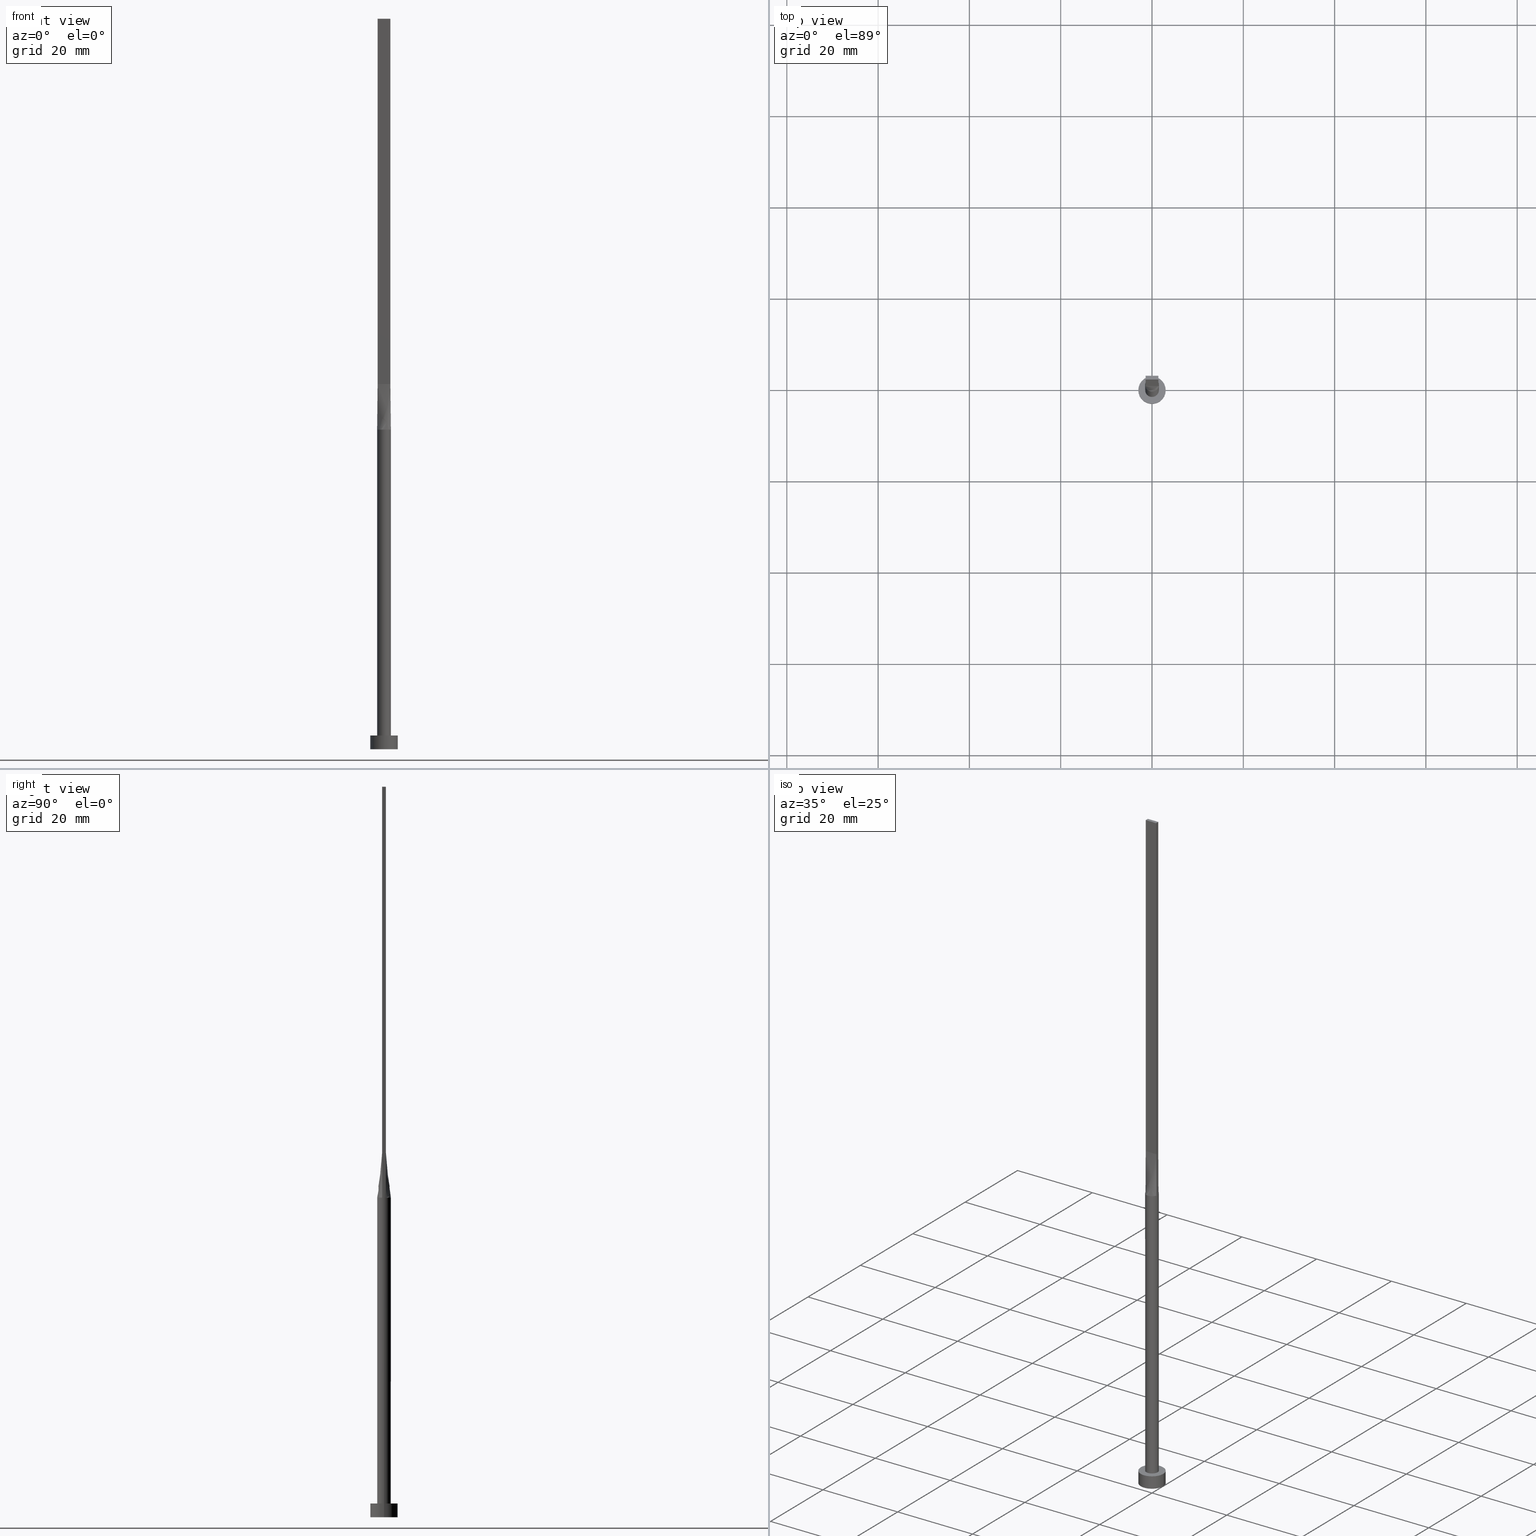
[diagram: canonical four-view strip — front | top / right | iso, engineering-drawing reading convention]
A machine part, canonical four-view strip (front | top / right | iso — engineering-drawing reading convention). The complete STEP part file that produces these views, byte-faithful:
ISO-10303-21;
HEADER;
FILE_DESCRIPTION (( 'STEP AP203' ),
    '1' );
FILE_NAME ('9461.STEP',
    '2026-02-12T09:08:30',
    ( '' ),
    ( '' ),
    'SwSTEP 2.0',
    'SolidWorks 2019',
    '' );
FILE_SCHEMA (( 'CONFIG_CONTROL_DESIGN' ));
ENDSEC;

DATA;
#1 = CARTESIAN_POINT ( 'NONE',  ( 1.442285921461234910, -0.4120816918460670220, 70.00000000000000000 ) ) ;
#2 = VERTEX_POINT ( 'NONE', #534 ) ;
#3 = CARTESIAN_POINT ( 'NONE',  ( -0.4666666666666673957, -0.3999999999999996336, 79.99999999999998579 ) ) ;
#4 = CYLINDRICAL_SURFACE ( 'NONE', #429, 3.000000000000000444 ) ;
#5 = EDGE_LOOP ( 'NONE', ( #409, #364, #118, #478 ) ) ;
#6 = CIRCLE ( 'NONE', #144, 3.000000000000000444 ) ;
#7 = AXIS2_PLACEMENT_3D ( 'NONE', #141, #191, #54 ) ;
#8 = CARTESIAN_POINT ( 'NONE',  ( -1.212111761082483863, -0.8950936653899566053, 70.00000000000001421 ) ) ;
#9 = DIRECTION ( 'NONE',  ( 0.000000000000000000, 0.000000000000000000, 1.000000000000000000 ) ) ;
#10 = EDGE_CURVE ( 'NONE', #226, #176, #210, .T. ) ;
#11 = DIRECTION ( 'NONE',  ( 0.000000000000000000, 0.000000000000000000, 1.000000000000000000 ) ) ;
#12 = EDGE_LOOP ( 'NONE', ( #406, #323, #430, #480 ) ) ;
#13 = FACE_OUTER_BOUND ( 'NONE', #321, .T. ) ;
#14 = VECTOR ( 'NONE', #553, 1000.000000000000000 ) ;
#15 = DIRECTION ( 'NONE',  ( 0.000000000000000000, 0.000000000000000000, 1.000000000000000000 ) ) ;
#16 = VECTOR ( 'NONE', #28, 1000.000000000000000 ) ;
#17 = CARTESIAN_POINT ( 'NONE',  ( -1.480021770517838897, -0.2800062201479532331, 70.00000000000000000 ) ) ;
#18 = ORIENTED_EDGE ( 'NONE', *, *, #419, .F. ) ;
#19 = CC_DESIGN_PERSON_AND_ORGANIZATION_ASSIGNMENT ( #299, #84, ( #27 ) ) ;
#20 = CARTESIAN_POINT ( 'NONE',  ( -1.399999999999999689, 0.4000000000000002442, 80.00000000000000000 ) ) ;
#21 = CARTESIAN_POINT ( 'NONE',  ( -1.442368678646663405, -0.4121057215347019853, 70.00000000000000000 ) ) ;
#22 =( NAMED_UNIT ( * ) PLANE_ANGLE_UNIT ( ) SI_UNIT ( $, .RADIAN. ) );
#23 = DIRECTION ( 'NONE',  ( 1.000000000000000000, 0.000000000000000000, 0.000000000000000000 ) ) ;
#24 = PLANE ( 'NONE',  #120 ) ;
#25 = CIRCLE ( 'NONE', #169, 1.500000000000000222 ) ;
#26 = CARTESIAN_POINT ( 'NONE',  ( 1.409267053536706671, 0.5276477295819161917, 70.00000000000000000 ) ) ;
#27 = SECURITY_CLASSIFICATION ( '', '', #111 ) ;
#28 = DIRECTION ( 'NONE',  ( -0.000000000000000000, -0.000000000000000000, -1.000000000000000000 ) ) ;
#29 = EDGE_CURVE ( 'NONE', #304, #226, #530, .T. ) ;
#30 = CARTESIAN_POINT ( 'NONE',  ( 0.000000000000000000, 0.000000000000000000, 3.000000000000000000 ) ) ;
#31 = PLANE ( 'NONE',  #307 ) ;
#32 = PERSON_AND_ORGANIZATION_ROLE ( 'creator' ) ;
#33 = EDGE_LOOP ( 'NONE', ( #126, #107, #55, #258, #401, #538 ) ) ;
#34 = CARTESIAN_POINT ( 'NONE',  ( -0.8665786268839184014, 1.235433898681765896, 70.00000000000000000 ) ) ;
#35 = COORDINATED_UNIVERSAL_TIME_OFFSET ( 1, 0, .AHEAD. ) ;
#36 = DIRECTION ( 'NONE',  ( -1.000000000000000000, -0.000000000000000000, -0.000000000000000000 ) ) ;
#37 = DIRECTION ( 'NONE',  ( 1.000000000000000000, -5.808225924029488744E-17, 0.000000000000000000 ) ) ;
#38 = EDGE_CURVE ( 'NONE', #176, #182, #361, .T. ) ;
#39 = CARTESIAN_POINT ( 'NONE',  ( -1.442285921461234688, 0.4120816918460670775, 70.00000000000000000 ) ) ;
#40 = FACE_OUTER_BOUND ( 'NONE', #5, .T. ) ;
#41 = EDGE_LOOP ( 'NONE', ( #345, #325 ) ) ;
#42 = CARTESIAN_POINT ( 'NONE',  ( 1.114527776139990101, 1.017390422009413431, 69.99999999999998579 ) ) ;
#43 = CARTESIAN_POINT ( 'NONE',  ( 0.000000000000000000, 0.000000000000000000, 70.00000000000000000 ) ) ;
#44 = CARTESIAN_POINT ( 'NONE',  ( -0.5833333333333339255, -0.3999999999999996336, 79.99999999999998579 ) ) ;
#45 = EDGE_CURVE ( 'NONE', #182, #467, #205, .T. ) ;
#46 = PLANE ( 'NONE',  #349 ) ;
#47 = CARTESIAN_POINT ( 'NONE',  ( 1.399999999999999911, -0.3999999999999998002, 80.00000000000000000 ) ) ;
#48 = EDGE_CURVE ( 'NONE', #238, #102, #160, .T. ) ;
#49 = EDGE_CURVE ( 'NONE', #353, #214, #557, .T. ) ;
#50 = VECTOR ( 'NONE', #402, 1000.000000000000000 ) ;
#51 = AXIS2_PLACEMENT_3D ( 'NONE', #146, #563, #383 ) ;
#52 = DIRECTION ( 'NONE',  ( -1.000000000000000000, 0.000000000000000000, 0.000000000000000000 ) ) ;
#53 = ORIENTED_EDGE ( 'NONE', *, *, #459, .F. ) ;
#54 = DIRECTION ( 'NONE',  ( -1.000000000000000000, 0.000000000000000000, 0.000000000000000000 ) ) ;
#55 = ORIENTED_EDGE ( 'NONE', *, *, #452, .F. ) ;
#56 = DIRECTION ( 'NONE',  ( 1.000000000000000000, 5.329070518200751394E-15, 0.000000000000000000 ) ) ;
#57 = VECTOR ( 'NONE', #36, 1000.000000000000000 ) ;
#58 = AXIS2_PLACEMENT_3D ( 'NONE', #461, #11, #184 ) ;
#59 = CARTESIAN_POINT ( 'NONE',  ( -1.399999999999999689, -0.1333333333333328041, 79.99999999999998579 ) ) ;
#60 = CYLINDRICAL_SURFACE ( 'NONE', #7, 3.000000000000000444 ) ;
#61 = PERSON_AND_ORGANIZATION ( #301, #371 ) ;
#62 = CARTESIAN_POINT ( 'NONE',  ( -1.399999999999999689, 0.4000000000000002442, 160.0000000000000000 ) ) ;
#63 = LINE ( 'NONE', #524, #221 ) ;
#64 = PLANE ( 'NONE',  #497 ) ;
#65 = EDGE_CURVE ( 'NONE', #226, #183, #542, .T. ) ;
#66 = DIRECTION ( 'NONE',  ( -0.000000000000000000, -0.000000000000000000, -1.000000000000000000 ) ) ;
#67 = DIRECTION ( 'NONE',  ( -0.004228551254826054019, -0.001208157501378828496, -0.9999903298081123104 ) ) ;
#68 = LOCAL_TIME ( 10, 8, 30.00000000000000000, #581 ) ;
#69 = CALENDAR_DATE ( 2026, 12, 2 ) ;
#70 = CARTESIAN_POINT ( 'NONE',  ( -0.2333333333333332815, 0.4000000000000001887, 79.99999999999998579 ) ) ;
#71 = APPLICATION_PROTOCOL_DEFINITION ( 'international standard', 'config_control_design', 1994, #158 ) ;
#72 = CARTESIAN_POINT ( 'NONE',  ( 0.8166666666666662078, 0.4000000000000001887, 79.99999999999998579 ) ) ;
#73 = ADVANCED_FACE ( 'NONE', ( #322 ), #4, .T. ) ;
#74 = DIRECTION ( 'NONE',  ( 0.000000000000000000, 0.000000000000000000, 1.000000000000000000 ) ) ;
#75 = VERTEX_POINT ( 'NONE', #165 ) ;
#76 = CARTESIAN_POINT ( 'NONE',  ( 0.1885753531885901724, 1.500000000000000666, 70.00000000000001421 ) ) ;
#77 = VECTOR ( 'NONE', #368, 1000.000000000000000 ) ;
#78 = CARTESIAN_POINT ( 'NONE',  ( 0.1166666666666653640, -0.3999999999999996336, 79.99999999999998579 ) ) ;
#79 = CARTESIAN_POINT ( 'NONE',  ( 0.1885753531885901724, 1.500000000000000666, 70.00000000000001421 ) ) ;
#80 = ORIENTED_EDGE ( 'NONE', *, *, #124, .F. ) ;
#81 = CC_DESIGN_DATE_AND_TIME_ASSIGNMENT ( #199, #562, ( #545 ) ) ;
#82 = CARTESIAN_POINT ( 'NONE',  ( -1.409267053536706893, -0.5276477295819155255, 70.00000000000000000 ) ) ;
#83 = VECTOR ( 'NONE', #390, 1000.000000000000000 ) ;
#84 = PERSON_AND_ORGANIZATION_ROLE ( 'classification_officer' ) ;
#85 = CARTESIAN_POINT ( 'NONE',  ( 0.1885753531885892564, -1.499999999999999778, 70.00000000000001421 ) ) ;
#86 = CARTESIAN_POINT ( 'NONE',  ( 0.8166666666666655416, -0.3999999999999997446, 79.99999999999998579 ) ) ;
#87 = EDGE_CURVE ( 'NONE', #341, #238, #520, .T. ) ;
#88 = FACE_BOUND ( 'NONE', #291, .T. ) ;
#89 = VERTEX_POINT ( 'NONE', #453 ) ;
#90 = CYLINDRICAL_SURFACE ( 'NONE', #308, 1.500000000000000222 ) ;
#91 = ORIENTED_EDGE ( 'NONE', *, *, #131, .T. ) ;
#92 = CARTESIAN_POINT ( 'NONE',  ( 1.399999999999999689, 0.4000000000000002442, 80.00000000000000000 ) ) ;
#93 = ORIENTED_EDGE ( 'NONE', *, *, #217, .F. ) ;
#94 = DIRECTION ( 'NONE',  ( 1.000000000000000000, 0.000000000000000000, 0.000000000000000000 ) ) ;
#95 = CARTESIAN_POINT ( 'NONE',  ( 3.000000000000000444, 3.673940397442060361E-16, 0.000000000000000000 ) ) ;
#96 = CARTESIAN_POINT ( 'NONE',  ( 0.000000000000000000, 0.000000000000000000, 3.000000000000000000 ) ) ;
#97 = DESIGN_CONTEXT ( 'detailed design', #158, 'design' ) ;
#98 = CARTESIAN_POINT ( 'NONE',  ( 0.000000000000000000, 0.000000000000000000, 70.00000000000000000 ) ) ;
#99 = PERSON_AND_ORGANIZATION ( #301, #371 ) ;
#100 = CARTESIAN_POINT ( 'NONE',  ( 1.399999999999999689, 0.2666666666666666630, 79.99999999999998579 ) ) ;
#101 = EDGE_CURVE ( 'NONE', #296, #75, #271, .T. ) ;
#102 = VERTEX_POINT ( 'NONE', #140 ) ;
#103 = CARTESIAN_POINT ( 'NONE',  ( -1.399999999999999911, -0.3999999999999996336, 80.00000000000000000 ) ) ;
#104 = DIRECTION ( 'NONE',  ( 0.000000000000000000, -0.000000000000000000, -1.000000000000000000 ) ) ;
#105 = CARTESIAN_POINT ( 'NONE',  ( 0.9333333333333329040, 0.4000000000000001332, 79.99999999999998579 ) ) ;
#106 = DIRECTION ( 'NONE',  ( -1.000000000000000000, -2.710505431213761085E-16, 0.000000000000000000 ) ) ;
#107 = ORIENTED_EDGE ( 'NONE', *, *, #374, .F. ) ;
#108 = CARTESIAN_POINT ( 'NONE',  ( 1.480021770517838897, 0.2800062201479540103, 70.00000000000000000 ) ) ;
#109 = CARTESIAN_POINT ( 'NONE',  ( 0.2333333333333335313, 0.4000000000000001887, 79.99999999999998579 ) ) ;
#110 = VECTOR ( 'NONE', #139, 1000.000000000000000 ) ;
#111 = SECURITY_CLASSIFICATION_LEVEL ( 'unclassified' ) ;
#112 = B_SPLINE_CURVE_WITH_KNOTS ( 'NONE', 3,
 ( #167, #533, #493, #537, #42, #456, #312, #363, #79, #127, #410, #579, #316, #494, #266, #377, #336, #225 ),
 .UNSPECIFIED., .F., .F.,
 ( 4, 2, 2, 2, 2, 2, 2, 2, 4 ),
 ( 0.000000000000000000, 0.1250000000000000833, 0.2500000000000001665, 0.3750000000000001110, 0.5000000000000001110, 0.6250000000000002220, 0.7500000000000001110, 0.8750000000000001110, 1.000000000000000000 ),
 .UNSPECIFIED. ) ;
#113 = CC_DESIGN_PERSON_AND_ORGANIZATION_ASSIGNMENT ( #339, #244, ( #545 ) ) ;
#114 = CARTESIAN_POINT ( 'NONE',  ( 1.283333333333332993, 0.4000000000000001887, 79.99999999999998579 ) ) ;
#115 = CARTESIAN_POINT ( 'NONE',  ( -1.500000000000000222, 0.000000000000000000, 70.00000000000000000 ) ) ;
#116 = ORIENTED_EDGE ( 'NONE', *, *, #552, .T. ) ;
#117 = CARTESIAN_POINT ( 'NONE',  ( 1.166666666666666075, 0.4000000000000001332, 79.99999999999998579 ) ) ;
#118 = ORIENTED_EDGE ( 'NONE', *, *, #211, .T. ) ;
#119 = CARTESIAN_POINT ( 'NONE',  ( -1.166666666666666741, -0.3999999999999996336, 79.99999999999998579 ) ) ;
#120 = AXIS2_PLACEMENT_3D ( 'NONE', #62, #441, #235 ) ;
#121 = CARTESIAN_POINT ( 'NONE',  ( 1.399999999999999911, -0.3999999999999998002, 160.0000000000000000 ) ) ;
#122 = CARTESIAN_POINT ( 'NONE',  ( -1.399999999999999911, -0.3999999999999996336, 160.0000000000000000 ) ) ;
#123 = CARTESIAN_POINT ( 'NONE',  ( -1.399999999999999689, 0.4000000000000002442, 80.00000000000000000 ) ) ;
#124 = EDGE_CURVE ( 'NONE', #536, #176, #334, .T. ) ;
#125 = ORIENTED_EDGE ( 'NONE', *, *, #45, .F. ) ;
#126 = ORIENTED_EDGE ( 'NONE', *, *, #101, .F. ) ;
#127 = CARTESIAN_POINT ( 'NONE',  ( -0.1885753531885899226, 1.500000000000000888, 70.00000000000001421 ) ) ;
#128 = ORIENTED_EDGE ( 'NONE', *, *, #177, .T. ) ;
#129 = FACE_OUTER_BOUND ( 'NONE', #12, .T. ) ;
#130 = APPROVAL_PERSON_ORGANIZATION ( #265, #445, #535 ) ;
#131 = EDGE_CURVE ( 'NONE', #75, #102, #25, .T. ) ;
#132 = CARTESIAN_POINT ( 'NONE',  ( -0.8166666666666668739, -0.3999999999999996336, 79.99999999999998579 ) ) ;
#133 = CARTESIAN_POINT ( 'NONE',  ( 0.000000000000000000, 0.000000000000000000, 70.00000000000000000 ) ) ;
#134 = ORIENTED_EDGE ( 'NONE', *, *, #131, .F. ) ;
#135 = ORIENTED_EDGE ( 'NONE', *, *, #419, .T. ) ;
#136 = CARTESIAN_POINT ( 'NONE',  ( 1.421142960730617411, -0.4060408459230334111, 75.00000000000001421 ) ) ;
#137 = ORIENTED_EDGE ( 'NONE', *, *, #437, .F. ) ;
#138 = PLANE ( 'NONE',  #420 ) ;
#139 = DIRECTION ( 'NONE',  ( 0.004228551254826032335, -0.001208157501378839338, 0.9999903298081123104 ) ) ;
#140 = CARTESIAN_POINT ( 'NONE',  ( -1.500000000000000222, 0.000000000000000000, 3.000000000000000000 ) ) ;
#141 = CARTESIAN_POINT ( 'NONE',  ( 0.000000000000000000, 0.000000000000000000, 3.000000000000000000 ) ) ;
#142 = DIRECTION ( 'NONE',  ( 0.000000000000000000, 0.000000000000000000, 1.000000000000000000 ) ) ;
#143 = DATE_AND_TIME ( #159, #180 ) ;
#144 = AXIS2_PLACEMENT_3D ( 'NONE', #484, #564, #208 ) ;
#145 = ADVANCED_FACE ( 'NONE', ( #431 ), #138, .F. ) ;
#146 = CARTESIAN_POINT ( 'NONE',  ( 0.000000000000000000, 0.000000000000000000, 70.00000000000000000 ) ) ;
#147 = EDGE_CURVE ( 'NONE', #102, #75, #496, .T. ) ;
#148 = FACE_OUTER_BOUND ( 'NONE', #315, .T. ) ;
#149 = CARTESIAN_POINT ( 'NONE',  ( 1.399999999999999689, 0.4000000000000002442, 160.0000000000000000 ) ) ;
#150 = CARTESIAN_POINT ( 'NONE',  ( -1.399999999999999911, -0.3999999999999996336, 160.0000000000000000 ) ) ;
#151 = APPROVAL_STATUS ( 'not_yet_approved' ) ;
#152 = ORIENTED_EDGE ( 'NONE', *, *, #29, .F. ) ;
#153 = CARTESIAN_POINT ( 'NONE',  ( 0.000000000000000000, 0.000000000000000000, 70.00000000000000000 ) ) ;
#154 = CARTESIAN_POINT ( 'NONE',  ( 0.000000000000000000, 0.000000000000000000, 70.00000000000000000 ) ) ;
#155 = LINE ( 'NONE', #483, #83 ) ;
#156 = CLOSED_SHELL ( 'NONE', ( #471, #73, #306, #411, #193, #354, #251, #491, #397, #231, #145, #504, #242, #523, #252 ) ) ;
#157 = CARTESIAN_POINT ( 'NONE',  ( -1.212111761082482975, 0.8950936653899578266, 70.00000000000001421 ) ) ;
#158 = APPLICATION_CONTEXT ( 'configuration controlled 3d designs of mechanical parts and assemblies' ) ;
#159 = CALENDAR_DATE ( 2026, 12, 2 ) ;
#160 = LINE ( 'NONE', #115, #369 ) ;
#161 = CARTESIAN_POINT ( 'NONE',  ( -0.1166666666666663771, 0.4000000000000001887, 79.99999999999998579 ) ) ;
#162 = CARTESIAN_POINT ( 'NONE',  ( 0.000000000000000000, 0.000000000000000000, 0.000000000000000000 ) ) ;
#163 = CARTESIAN_POINT ( 'NONE',  ( -1.421142960730617633, -0.4060408459230329670, 75.00000000000001421 ) ) ;
#164 = DIRECTION ( 'NONE',  ( -0.000000000000000000, -0.000000000000000000, -1.000000000000000000 ) ) ;
#165 = CARTESIAN_POINT ( 'NONE',  ( 1.500000000000000222, 1.836970198721030181E-16, 3.000000000000000000 ) ) ;
#166 = ORIENTED_EDGE ( 'NONE', *, *, #295, .F. ) ;
#167 = CARTESIAN_POINT ( 'NONE',  ( 1.442362338805188937, 0.4121038472597355895, 70.00000000000000000 ) ) ;
#168 = PRODUCT_RELATED_PRODUCT_CATEGORY ( 'detail', '', ( #507 ) ) ;
#169 = AXIS2_PLACEMENT_3D ( 'NONE', #427, #15, #94 ) ;
#170 =( GEOMETRIC_REPRESENTATION_CONTEXT ( 3 ) GLOBAL_UNCERTAINTY_ASSIGNED_CONTEXT ( ( #259 ) ) GLOBAL_UNIT_ASSIGNED_CONTEXT ( ( #525, #22, #386 ) ) REPRESENTATION_CONTEXT ( 'NONE', 'WORKASPACE' ) );
#171 = APPROVAL_STATUS ( 'not_yet_approved' ) ;
#172 = ORIENTED_EDGE ( 'NONE', *, *, #187, .T. ) ;
#173 = CARTESIAN_POINT ( 'NONE',  ( 1.212111761082483197, -0.8950936653899579376, 70.00000000000002842 ) ) ;
#174 = ORIENTED_EDGE ( 'NONE', *, *, #275, .T. ) ;
#175 = DIRECTION ( 'NONE',  ( 1.000000000000000000, 0.000000000000000000, -0.000000000000000000 ) ) ;
#176 = VERTEX_POINT ( 'NONE', #289 ) ;
#177 = EDGE_CURVE ( 'NONE', #238, #426, #398, .T. ) ;
#178 = CARTESIAN_POINT ( 'NONE',  ( -0.3767059690781856540, -1.463302066271690904, 70.00000000000000000 ) ) ;
#179 = ORIENTED_EDGE ( 'NONE', *, *, #49, .F. ) ;
#180 = LOCAL_TIME ( 10, 8, 30.00000000000000000, #35 ) ;
#181 = CARTESIAN_POINT ( 'NONE',  ( -1.283333333333333437, -0.3999999999999996336, 79.99999999999998579 ) ) ;
#182 = VERTEX_POINT ( 'NONE', #393 ) ;
#183 = VERTEX_POINT ( 'NONE', #404 ) ;
#184 = DIRECTION ( 'NONE',  ( 1.000000000000000000, 0.000000000000000000, 0.000000000000000000 ) ) ;
#185 = DIRECTION ( 'NONE',  ( -0.000000000000000000, -0.000000000000000000, -1.000000000000000000 ) ) ;
#186 = ORIENTED_EDGE ( 'NONE', *, *, #317, .T. ) ;
#187 = EDGE_CURVE ( 'NONE', #214, #353, #6, .T. ) ;
#188 = VECTOR ( 'NONE', #570, 1000.000000000000000 ) ;
#189 = AXIS2_PLACEMENT_3D ( 'NONE', #133, #282, #56 ) ;
#190 = CIRCLE ( 'NONE', #51, 1.500000000000000222 ) ;
#191 = DIRECTION ( 'NONE',  ( -0.000000000000000000, -0.000000000000000000, -1.000000000000000000 ) ) ;
#192 = FACE_OUTER_BOUND ( 'NONE', #41, .T. ) ;
#193 = ADVANCED_FACE ( 'NONE', ( #474 ), #31, .F. ) ;
#194 = LINE ( 'NONE', #509, #578 ) ;
#195 = VECTOR ( 'NONE', #438, 1000.000000000000000 ) ;
#196 = ORIENTED_EDGE ( 'NONE', *, *, #452, .T. ) ;
#197 = LINE ( 'NONE', #297, #16 ) ;
#198 = CARTESIAN_POINT ( 'NONE',  ( 1.359280768448766663, 0.6502025712814714087, 69.99999999999998579 ) ) ;
#199 = DATE_AND_TIME ( #352, #385 ) ;
#200 = CARTESIAN_POINT ( 'NONE',  ( 1.442285921461234910, 0.4120816918460673550, 70.00000000000000000 ) ) ;
#201 = CARTESIAN_POINT ( 'NONE',  ( 0.8665786268839186235, 1.235433898681765008, 69.99999999999998579 ) ) ;
#202 = CARTESIAN_POINT ( 'NONE',  ( 0.000000000000000000, 0.000000000000000000, 0.000000000000000000 ) ) ;
#203 = CARTESIAN_POINT ( 'NONE',  ( 0.4666666666666665630, 0.4000000000000001887, 79.99999999999998579 ) ) ;
#204 = EDGE_CURVE ( 'NONE', #467, #426, #240, .T. ) ;
#205 = LINE ( 'NONE', #400, #188 ) ;
#206 = ORIENTED_EDGE ( 'NONE', *, *, #204, .T. ) ;
#207 = VECTOR ( 'NONE', #302, 1000.000000000000000 ) ;
#208 = DIRECTION ( 'NONE',  ( 1.000000000000000000, 0.000000000000000000, 0.000000000000000000 ) ) ;
#209 = CARTESIAN_POINT ( 'NONE',  ( 0.5833333333333330373, 0.4000000000000001887, 79.99999999999998579 ) ) ;
#210 = LINE ( 'NONE', #575, #284 ) ;
#211 = EDGE_CURVE ( 'NONE', #412, #304, #63, .T. ) ;
#212 = EDGE_LOOP ( 'NONE', ( #174, #510, #264, #80 ) ) ;
#213 = FACE_OUTER_BOUND ( 'NONE', #449, .T. ) ;
#214 = VERTEX_POINT ( 'NONE', #293 ) ;
#215 = DIRECTION ( 'NONE',  ( 0.000000000000000000, 0.000000000000000000, 1.000000000000000000 ) ) ;
#216 = CARTESIAN_POINT ( 'NONE',  ( -1.500000000000000222, 8.735352324927310277E-17, 70.00000000000000000 ) ) ;
#217 = EDGE_CURVE ( 'NONE', #412, #467, #561, .T. ) ;
#218 = CARTESIAN_POINT ( 'NONE',  ( -1.442285921461235132, -0.4120816918460664113, 70.00000000000000000 ) ) ;
#219 = ORIENTED_EDGE ( 'NONE', *, *, #328, .F. ) ;
#220 = DIRECTION ( 'NONE',  ( 5.808225924029488744E-17, 1.000000000000000000, -0.000000000000000000 ) ) ;
#221 = VECTOR ( 'NONE', #37, 1000.000000000000000 ) ;
#222 = DIRECTION ( 'NONE',  ( -2.710505431213761085E-16, 1.000000000000000000, -0.000000000000000000 ) ) ;
#223 = CARTESIAN_POINT ( 'NONE',  ( 1.399999999999999689, 0.4000000000000002442, 160.0000000000000000 ) ) ;
#224 = EDGE_CURVE ( 'NONE', #314, #2, #384, .T. ) ;
#225 = CARTESIAN_POINT ( 'NONE',  ( -1.442387148345315895, 0.4121110244020492197, 70.00000000000000000 ) ) ;
#226 = VERTEX_POINT ( 'NONE', #356 ) ;
#227 = CARTESIAN_POINT ( 'NONE',  ( -1.399999999999999689, 0.1333333333333337756, 79.99999999999998579 ) ) ;
#228 = AXIS2_PLACEMENT_3D ( 'NONE', #162, #9, #269 ) ;
#229 = APPROVAL_PERSON_ORGANIZATION ( #61, #565, #344 ) ;
#230 = CARTESIAN_POINT ( 'NONE',  ( -1.399999999999999911, -0.2666666666666661634, 79.99999999999998579 ) ) ;
#231 = ADVANCED_FACE ( 'NONE', ( #236 ), #233, .T. ) ;
#232 = CARTESIAN_POINT ( 'NONE',  ( -1.399999999999999689, 0.2666666666666669960, 79.99999999999998579 ) ) ;
#233 = B_SPLINE_SURFACE_WITH_KNOTS ( 'NONE', 3, 1, ( 
 ( #476, #245 ),
 ( #26, #114 ),
 ( #198, #117 ),
 ( #389, #105 ),
 ( #442, #72 ),
 ( #201, #209 ),
 ( #347, #203 ),
 ( #519, #109 ),
 ( #76, #450 ),
 ( #298, #161 ),
 ( #482, #70 ),
 ( #243, #444 ),
 ( #34, #396 ),
 ( #355, #567 ),
 ( #157, #300 ),
 ( #447, #526 ),
 ( #305, #487 ),
 ( #39, #498 ) ),
 .UNSPECIFIED., .F., .F., .F.,
 ( 4, 2, 2, 2, 2, 2, 2, 2, 4 ),
 ( 2, 2 ),
 ( 0.000000000000000000, 0.1250000000000000833, 0.2500000000000001665, 0.3750000000000001110, 0.5000000000000001110, 0.6250000000000002220, 0.7500000000000001110, 0.8750000000000001110, 1.000000000000000000 ),
 ( 0.000000000000000000, 1.000000000000000000 ),
 .UNSPECIFIED. ) ;
#234 = PERSON_AND_ORGANIZATION_ROLE ( 'design_supplier' ) ;
#235 = DIRECTION ( 'NONE',  ( 2.710505431213761578E-16, 1.000000000000000000, 0.000000000000000000 ) ) ;
#236 = FACE_OUTER_BOUND ( 'NONE', #212, .T. ) ;
#237 = DIRECTION ( 'NONE',  ( 1.000000000000000000, 0.000000000000000000, 0.000000000000000000 ) ) ;
#238 = VERTEX_POINT ( 'NONE', #216 ) ;
#239 = DIRECTION ( 'NONE',  ( -1.000000000000000000, 0.000000000000000000, 0.000000000000000000 ) ) ;
#240 = LINE ( 'NONE', #163, #488 ) ;
#241 = DATE_AND_TIME ( #69, #399 ) ;
#242 = ADVANCED_FACE ( 'NONE', ( #129 ), #46, .F. ) ;
#243 = CARTESIAN_POINT ( 'NONE',  ( -0.7158926189626803049, 1.330660769095148410, 70.00000000000000000 ) ) ;
#244 = PERSON_AND_ORGANIZATION_ROLE ( 'creator' ) ;
#245 = CARTESIAN_POINT ( 'NONE',  ( 1.399999999999999689, 0.4000000000000002442, 80.00000000000000000 ) ) ;
#246 = DATE_AND_TIME ( #405, #68 ) ;
#247 = EDGE_LOOP ( 'NONE', ( #571, #464, #116, #172 ) ) ;
#248 = AXIS2_PLACEMENT_3D ( 'NONE', #154, #250, #574 ) ;
#249 = CIRCLE ( 'NONE', #58, 3.000000000000000444 ) ;
#250 = DIRECTION ( 'NONE',  ( 0.000000000000000000, 0.000000000000000000, 1.000000000000000000 ) ) ;
#251 = ADVANCED_FACE ( 'NONE', ( #213 ), #434, .T. ) ;
#252 = ADVANCED_FACE ( 'NONE', ( #40 ), #407, .T. ) ;
#253 = DATE_AND_TIME ( #415, #359 ) ;
#254 = CARTESIAN_POINT ( 'NONE',  ( 0.7158926189626801939, -1.330660769095147744, 69.99999999999998579 ) ) ;
#255 = DATE_TIME_ROLE ( 'classification_date' ) ;
#256 = DIRECTION ( 'NONE',  ( 1.000000000000000000, 0.000000000000000000, 0.000000000000000000 ) ) ;
#257 = CARTESIAN_POINT ( 'NONE',  ( -1.359280768448767551, -0.6502025712814705205, 69.99999999999998579 ) ) ;
#258 = ORIENTED_EDGE ( 'NONE', *, *, #177, .F. ) ;
#259 = UNCERTAINTY_MEASURE_WITH_UNIT (LENGTH_MEASURE( 1.000000000000000082E-05 ), #525, 'distance_accuracy_value', 'NONE');
#260 = DIRECTION ( 'NONE',  ( -1.000000000000000000, 0.000000000000000000, 0.000000000000000000 ) ) ;
#261 = AXIS2_PLACEMENT_3D ( 'NONE', #43, #311, #256 ) ;
#262 = CARTESIAN_POINT ( 'NONE',  ( -0.7158926189626813041, -1.330660769095146634, 69.99999999999998579 ) ) ;
#263 = AXIS2_PLACEMENT_3D ( 'NONE', #153, #66, #239 ) ;
#264 = ORIENTED_EDGE ( 'NONE', *, *, #38, .F. ) ;
#265 = PERSON_AND_ORGANIZATION ( #301, #371 ) ;
#266 = CARTESIAN_POINT ( 'NONE',  ( -1.212111761082482975, 0.8950936653899578266, 70.00000000000001421 ) ) ;
#267 = ORIENTED_EDGE ( 'NONE', *, *, #10, .T. ) ;
#268 = CARTESIAN_POINT ( 'NONE',  ( 1.166666666666666075, -0.3999999999999997446, 79.99999999999998579 ) ) ;
#269 = DIRECTION ( 'NONE',  ( 1.000000000000000000, 0.000000000000000000, 0.000000000000000000 ) ) ;
#270 = CARTESIAN_POINT ( 'NONE',  ( 0.000000000000000000, 0.000000000000000000, 3.000000000000000000 ) ) ;
#271 = LINE ( 'NONE', #380, #272 ) ;
#272 = VECTOR ( 'NONE', #549, 1000.000000000000000 ) ;
#273 = APPROVAL_PERSON_ORGANIZATION ( #394, #283, #569 ) ;
#274 = ORIENTED_EDGE ( 'NONE', *, *, #374, .T. ) ;
#275 = EDGE_CURVE ( 'NONE', #536, #341, #112, .T. ) ;
#276 = EDGE_LOOP ( 'NONE', ( #580, #53, #573, #267 ) ) ;
#277 = CARTESIAN_POINT ( 'NONE',  ( -1.442285921461234688, 0.4120816918460674105, 70.00000000000000000 ) ) ;
#278 = ORIENTED_EDGE ( 'NONE', *, *, #317, .F. ) ;
#279 = PRODUCT_DEFINITION_SHAPE ( 'NONE', 'NONE',  #545 ) ;
#280 = CARTESIAN_POINT ( 'NONE',  ( -1.399999999999999911, -0.3999999999999996336, 80.00000000000000000 ) ) ;
#281 = CARTESIAN_POINT ( 'NONE',  ( 1.421142960730617189, 0.4060408459230337996, 75.00000000000001421 ) ) ;
#282 = DIRECTION ( 'NONE',  ( 0.000000000000000000, 0.000000000000000000, 1.000000000000000000 ) ) ;
#283 = APPROVAL ( #151, 'NEUR�EN�' ) ;
#284 = VECTOR ( 'NONE', #164, 1000.000000000000000 ) ;
#285 = VECTOR ( 'NONE', #463, 1000.000000000000000 ) ;
#286 = DIRECTION ( 'NONE',  ( 0.000000000000000000, 0.000000000000000000, 1.000000000000000000 ) ) ;
#287 = PERSON_AND_ORGANIZATION_ROLE ( 'design_owner' ) ;
#288 = CARTESIAN_POINT ( 'NONE',  ( 1.399999999999999689, 0.4000000000000002442, 80.00000000000000000 ) ) ;
#289 = CARTESIAN_POINT ( 'NONE',  ( 1.399999999999999689, 0.4000000000000002442, 80.00000000000000000 ) ) ;
#290 = APPROVAL_DATE_TIME ( #143, #283 ) ;
#291 = EDGE_LOOP ( 'NONE', ( #543, #134 ) ) ;
#292 = FACE_OUTER_BOUND ( 'NONE', #508, .T. ) ;
#293 = CARTESIAN_POINT ( 'NONE',  ( -3.000000000000000444, 0.000000000000000000, 0.000000000000000000 ) ) ;
#294 = MECHANICAL_CONTEXT ( 'NONE', #499, 'mechanical' ) ;
#295 = EDGE_CURVE ( 'NONE', #467, #89, #381, .T. ) ;
#296 = VERTEX_POINT ( 'NONE', #425 ) ;
#297 = CARTESIAN_POINT ( 'NONE',  ( -1.399999999999999689, 0.4000000000000002442, 160.0000000000000000 ) ) ;
#298 = CARTESIAN_POINT ( 'NONE',  ( -0.1885753531885899226, 1.500000000000000888, 70.00000000000001421 ) ) ;
#299 = PERSON_AND_ORGANIZATION ( #301, #371 ) ;
#300 = CARTESIAN_POINT ( 'NONE',  ( -0.9333333333333331261, 0.4000000000000001887, 79.99999999999998579 ) ) ;
#301 = PERSON ( 'NEUR�EN�', 'NEUR�EN�', 'NEUR�EN�', ('NEUR�EN�'), ('NEUR�EN�'), ('NEUR�EN�') ) ;
#302 = DIRECTION ( 'NONE',  ( -0.000000000000000000, -0.000000000000000000, -1.000000000000000000 ) ) ;
#303 = VERTEX_POINT ( 'NONE', #326 ) ;
#304 = VERTEX_POINT ( 'NONE', #550 ) ;
#305 = CARTESIAN_POINT ( 'NONE',  ( -1.409267053536706671, 0.5276477295819163027, 70.00000000000001421 ) ) ;
#306 = ADVANCED_FACE ( 'NONE', ( #428 ), #60, .T. ) ;
#307 = AXIS2_PLACEMENT_3D ( 'NONE', #516, #351, #528 ) ;
#308 = AXIS2_PLACEMENT_3D ( 'NONE', #333, #185, #52 ) ;
#309 = CARTESIAN_POINT ( 'NONE',  ( -0.2333333333333344473, -0.3999999999999996336, 79.99999999999998579 ) ) ;
#310 = DIRECTION ( 'NONE',  ( -2.710505431213761085E-16, 1.000000000000000000, 0.000000000000000000 ) ) ;
#311 = DIRECTION ( 'NONE',  ( 0.000000000000000000, 0.000000000000000000, 1.000000000000000000 ) ) ;
#312 = CARTESIAN_POINT ( 'NONE',  ( 0.7158926189626808601, 1.330660769095147966, 69.99999999999998579 ) ) ;
#313 = SHAPE_DEFINITION_REPRESENTATION ( #279, #416 ) ;
#314 = VERTEX_POINT ( 'NONE', #541 ) ;
#315 = EDGE_LOOP ( 'NONE', ( #551, #506, #152, #378 ) ) ;
#316 = CARTESIAN_POINT ( 'NONE',  ( -0.8665786268839184014, 1.235433898681765896, 70.00000000000000000 ) ) ;
#317 = EDGE_CURVE ( 'NONE', #303, #89, #544, .T. ) ;
#318 = AXIS2_PLACEMENT_3D ( 'NONE', #30, #555, #23 ) ;
#319 = CARTESIAN_POINT ( 'NONE',  ( 1.359280768448766663, -0.6502025712814719638, 70.00000000000001421 ) ) ;
#320 = CIRCLE ( 'NONE', #477, 1.500000000000000222 ) ;
#321 = EDGE_LOOP ( 'NONE', ( #373, #128, #372, #125, #219 ) ) ;
#322 = FACE_OUTER_BOUND ( 'NONE', #502, .T. ) ;
#323 = ORIENTED_EDGE ( 'NONE', *, *, #512, .F. ) ;
#324 = CARTESIAN_POINT ( 'NONE',  ( 0.8665786268839185125, -1.235433898681766340, 70.00000000000002842 ) ) ;
#325 = ORIENTED_EDGE ( 'NONE', *, *, #437, .T. ) ;
#326 = CARTESIAN_POINT ( 'NONE',  ( 1.442393550978850802, -0.4121129214357137083, 70.00000000000000000 ) ) ;
#327 = ORIENTED_EDGE ( 'NONE', *, *, #124, .T. ) ;
#328 = EDGE_CURVE ( 'NONE', #341, #182, #330, .T. ) ;
#329 = ORIENTED_EDGE ( 'NONE', *, *, #87, .F. ) ;
#330 = LINE ( 'NONE', #501, #110 ) ;
#331 = CIRCLE ( 'NONE', #189, 1.500000000000000222 ) ;
#332 = EDGE_LOOP ( 'NONE', ( #18, #531, #91, #457, #329, #486 ) ) ;
#333 = CARTESIAN_POINT ( 'NONE',  ( 0.000000000000000000, 0.000000000000000000, 70.00000000000000000 ) ) ;
#334 = LINE ( 'NONE', #281, #14 ) ;
#335 = EDGE_CURVE ( 'NONE', #183, #412, #194, .T. ) ;
#336 = CARTESIAN_POINT ( 'NONE',  ( -1.409267053536706671, 0.5276477295819163027, 70.00000000000001421 ) ) ;
#337 = ORIENTED_EDGE ( 'NONE', *, *, #49, .T. ) ;
#338 = DIRECTION ( 'NONE',  ( 1.000000000000000000, 0.000000000000000000, -0.000000000000000000 ) ) ;
#339 = PERSON_AND_ORGANIZATION ( #301, #371 ) ;
#340 = FACE_OUTER_BOUND ( 'NONE', #332, .T. ) ;
#341 = VERTEX_POINT ( 'NONE', #503 ) ;
#342 = CARTESIAN_POINT ( 'NONE',  ( 1.480021770517838231, -0.2800062201479543988, 70.00000000000001421 ) ) ;
#343 = DIRECTION ( 'NONE',  ( 0.000000000000000000, 0.000000000000000000, 1.000000000000000000 ) ) ;
#344 = APPROVAL_ROLE ( '' ) ;
#345 = ORIENTED_EDGE ( 'NONE', *, *, #224, .T. ) ;
#346 = CARTESIAN_POINT ( 'NONE',  ( 1.500000000000000222, -0.1400549446402594711, 70.00000000000000000 ) ) ;
#347 = CARTESIAN_POINT ( 'NONE',  ( 0.7158926189626808601, 1.330660769095147966, 69.99999999999998579 ) ) ;
#348 = APPROVAL_STATUS ( 'not_yet_approved' ) ;
#349 = AXIS2_PLACEMENT_3D ( 'NONE', #122, #220, #539 ) ;
#350 = ORIENTED_EDGE ( 'NONE', *, *, #335, .F. ) ;
#351 = DIRECTION ( 'NONE',  ( 0.000000000000000000, 0.000000000000000000, 1.000000000000000000 ) ) ;
#352 = CALENDAR_DATE ( 2026, 12, 2 ) ;
#353 = VERTEX_POINT ( 'NONE', #95 ) ;
#354 = ADVANCED_FACE ( 'NONE', ( #468 ), #90, .T. ) ;
#355 = CARTESIAN_POINT ( 'NONE',  ( -1.114527776139989212, 1.017390422009414319, 70.00000000000001421 ) ) ;
#356 = CARTESIAN_POINT ( 'NONE',  ( 1.399999999999999689, 0.4000000000000002442, 160.0000000000000000 ) ) ;
#357 = MANIFOLD_SOLID_BREP ( 'P�idat vysunut�m5', #156 ) ;
#358 = ORIENTED_EDGE ( 'NONE', *, *, #552, .F. ) ;
#359 = LOCAL_TIME ( 10, 8, 30.00000000000000000, #495 ) ;
#360 = CARTESIAN_POINT ( 'NONE',  ( 1.283333333333332993, -0.3999999999999997446, 79.99999999999998579 ) ) ;
#361 = LINE ( 'NONE', #123, #57 ) ;
#362 = DIRECTION ( 'NONE',  ( -0.000000000000000000, -0.000000000000000000, -1.000000000000000000 ) ) ;
#363 = CARTESIAN_POINT ( 'NONE',  ( 0.3767059690781852654, 1.463302066271692015, 70.00000000000001421 ) ) ;
#364 = ORIENTED_EDGE ( 'NONE', *, *, #335, .T. ) ;
#365 = EDGE_CURVE ( 'NONE', #89, #176, #505, .T. ) ;
#366 = CARTESIAN_POINT ( 'NONE',  ( 0.3767059690781844328, -1.463302066271691571, 70.00000000000000000 ) ) ;
#367 = ORIENTED_EDGE ( 'NONE', *, *, #187, .F. ) ;
#368 = DIRECTION ( 'NONE',  ( -1.000000000000000000, 0.000000000000000000, 0.000000000000000000 ) ) ;
#369 = VECTOR ( 'NONE', #403, 1000.000000000000000 ) ;
#370 = CARTESIAN_POINT ( 'NONE',  ( -0.9333333333333335702, -0.3999999999999996336, 79.99999999999998579 ) ) ;
#371 = ORGANIZATION ( 'NEUR�EN�', 'NEUR�EN�', '' ) ;
#372 = ORIENTED_EDGE ( 'NONE', *, *, #204, .F. ) ;
#373 = ORIENTED_EDGE ( 'NONE', *, *, #87, .T. ) ;
#374 = EDGE_CURVE ( 'NONE', #303, #296, #331, .T. ) ;
#375 = CC_DESIGN_PERSON_AND_ORGANIZATION_ASSIGNMENT ( #99, #287, ( #507 ) ) ;
#376 = CARTESIAN_POINT ( 'NONE',  ( -0.8665786268839192896, -1.235433898681764786, 69.99999999999998579 ) ) ;
#377 = CARTESIAN_POINT ( 'NONE',  ( -1.359280768448767329, 0.6502025712814717417, 70.00000000000002842 ) ) ;
#378 = ORIENTED_EDGE ( 'NONE', *, *, #512, .T. ) ;
#379 = CARTESIAN_POINT ( 'NONE',  ( -1.500000000000000222, 0.1400549446402596099, 70.00000000000000000 ) ) ;
#380 = CARTESIAN_POINT ( 'NONE',  ( 1.500000000000000222, 1.836970198721030181E-16, 70.00000000000000000 ) ) ;
#381 = LINE ( 'NONE', #280, #285 ) ;
#382 = PLANE ( 'NONE',  #521 ) ;
#383 = DIRECTION ( 'NONE',  ( 1.000000000000000000, 0.000000000000000000, 0.000000000000000000 ) ) ;
#384 = CIRCLE ( 'NONE', #532, 3.000000000000000444 ) ;
#385 = LOCAL_TIME ( 10, 8, 30.00000000000000000, #446 ) ;
#386 =( NAMED_UNIT ( * ) SI_UNIT ( $, .STERADIAN. ) SOLID_ANGLE_UNIT ( ) );
#387 = CYLINDRICAL_SURFACE ( 'NONE', #263, 1.500000000000000222 ) ;
#388 = CC_DESIGN_PERSON_AND_ORGANIZATION_ASSIGNMENT ( #566, #32, ( #462 ) ) ;
#389 = CARTESIAN_POINT ( 'NONE',  ( 1.212111761082483197, 0.8950936653899574935, 70.00000000000001421 ) ) ;
#390 = DIRECTION ( 'NONE',  ( -0.000000000000000000, -0.000000000000000000, -1.000000000000000000 ) ) ;
#391 = EDGE_LOOP ( 'NONE', ( #367, #179 ) ) ;
#392 = CARTESIAN_POINT ( 'NONE',  ( 1.399999999999999911, -0.2666666666666665519, 79.99999999999998579 ) ) ;
#393 = CARTESIAN_POINT ( 'NONE',  ( -1.399999999999999689, 0.4000000000000002442, 80.00000000000000000 ) ) ;
#394 = PERSON_AND_ORGANIZATION ( #301, #371 ) ;
#395 = EDGE_LOOP ( 'NONE', ( #546, #93, #350, #414 ) ) ;
#396 = CARTESIAN_POINT ( 'NONE',  ( -0.5833333333333332593, 0.4000000000000001887, 79.99999999999998579 ) ) ;
#397 = ADVANCED_FACE ( 'NONE', ( #13 ), #424, .T. ) ;
#398 = CIRCLE ( 'NONE', #248, 1.500000000000000222 ) ;
#399 = LOCAL_TIME ( 10, 8, 30.00000000000000000, #517 ) ;
#400 = CARTESIAN_POINT ( 'NONE',  ( -1.399999999999999689, 0.4000000000000002442, 80.00000000000000000 ) ) ;
#401 = ORIENTED_EDGE ( 'NONE', *, *, #48, .T. ) ;
#402 = DIRECTION ( 'NONE',  ( -0.000000000000000000, -0.000000000000000000, -1.000000000000000000 ) ) ;
#403 = DIRECTION ( 'NONE',  ( -0.000000000000000000, -0.000000000000000000, -1.000000000000000000 ) ) ;
#404 = CARTESIAN_POINT ( 'NONE',  ( -1.399999999999999689, 0.4000000000000002442, 160.0000000000000000 ) ) ;
#405 = CALENDAR_DATE ( 2026, 12, 2 ) ;
#406 = ORIENTED_EDGE ( 'NONE', *, *, #295, .T. ) ;
#407 = PLANE ( 'NONE',  #489 ) ;
#408 = VECTOR ( 'NONE', #310, 1000.000000000000000 ) ;
#409 = ORIENTED_EDGE ( 'NONE', *, *, #65, .T. ) ;
#410 = CARTESIAN_POINT ( 'NONE',  ( -0.3767059690781846548, 1.463302066271692015, 70.00000000000000000 ) ) ;
#411 = ADVANCED_FACE ( 'NONE', ( #88, #192 ), #382, .T. ) ;
#412 = VERTEX_POINT ( 'NONE', #511 ) ;
#413 = CARTESIAN_POINT ( 'NONE',  ( 0.9333333333333324600, -0.3999999999999997446, 79.99999999999998579 ) ) ;
#414 = ORIENTED_EDGE ( 'NONE', *, *, #459, .T. ) ;
#415 = CALENDAR_DATE ( 2026, 12, 2 ) ;
#416 = ADVANCED_BREP_SHAPE_REPRESENTATION ( '9461', ( #357, #558 ), #170 ) ;
#417 = CARTESIAN_POINT ( 'NONE',  ( -1.399999999999999911, -0.3999999999999996336, 80.00000000000000000 ) ) ;
#418 = ORIENTED_EDGE ( 'NONE', *, *, #529, .T. ) ;
#419 = EDGE_CURVE ( 'NONE', #296, #536, #320, .T. ) ;
#420 = AXIS2_PLACEMENT_3D ( 'NONE', #149, #515, #104 ) ;
#421 = CARTESIAN_POINT ( 'NONE',  ( -1.114527776139990323, -1.017390422009413209, 70.00000000000001421 ) ) ;
#422 = CC_DESIGN_SECURITY_CLASSIFICATION ( #27, ( #462 ) ) ;
#423 = CARTESIAN_POINT ( 'NONE',  ( -1.399999999999999911, -0.3999999999999994671, 80.00000000000000000 ) ) ;
#424 = B_SPLINE_SURFACE_WITH_KNOTS ( 'NONE', 3, 1, ( 
 ( #277, #20 ),
 ( #554, #232 ),
 ( #379, #227 ),
 ( #435, #59 ),
 ( #17, #230 ),
 ( #432, #423 ) ),
 .UNSPECIFIED., .F., .F., .F.,
 ( 4, 2, 4 ),
 ( 2, 2 ),
 ( 0.000000000000000000, 0.5000000000000000000, 1.000000000000000000 ),
 ( 0.000000000000000000, 1.000000000000000000 ),
 .UNSPECIFIED. ) ;
#425 = CARTESIAN_POINT ( 'NONE',  ( 1.500000000000000000, -9.795443734464536283E-18, 70.00000000000000000 ) ) ;
#426 = VERTEX_POINT ( 'NONE', #21 ) ;
#427 = CARTESIAN_POINT ( 'NONE',  ( 0.000000000000000000, 0.000000000000000000, 3.000000000000000000 ) ) ;
#428 = FACE_OUTER_BOUND ( 'NONE', #247, .T. ) ;
#429 = AXIS2_PLACEMENT_3D ( 'NONE', #96, #362, #260 ) ;
#430 = ORIENTED_EDGE ( 'NONE', *, *, #211, .F. ) ;
#431 = FACE_OUTER_BOUND ( 'NONE', #276, .T. ) ;
#432 = CARTESIAN_POINT ( 'NONE',  ( -1.442285921461235132, -0.4120816918460665224, 70.00000000000000000 ) ) ;
#433 = LINE ( 'NONE', #472, #207 ) ;
#434 = B_SPLINE_SURFACE_WITH_KNOTS ( 'NONE', 3, 1, ( 
 ( #218, #417 ),
 ( #82, #181 ),
 ( #257, #119 ),
 ( #8, #370 ),
 ( #421, #132 ),
 ( #376, #44 ),
 ( #262, #3 ),
 ( #178, #309 ),
 ( #490, #458 ),
 ( #85, #78 ),
 ( #366, #540 ),
 ( #254, #451 ),
 ( #324, #454 ),
 ( #500, #86 ),
 ( #173, #413 ),
 ( #319, #268 ),
 ( #460, #360 ),
 ( #1, #47 ) ),
 .UNSPECIFIED., .F., .F., .F.,
 ( 4, 2, 2, 2, 2, 2, 2, 2, 4 ),
 ( 2, 2 ),
 ( 0.000000000000000000, 0.1250000000000000833, 0.2500000000000001665, 0.3750000000000001110, 0.5000000000000001110, 0.6250000000000001110, 0.7500000000000000000, 0.8750000000000000000, 1.000000000000000000 ),
 ( 0.000000000000000000, 1.000000000000000000 ),
 .UNSPECIFIED. ) ;
#435 = CARTESIAN_POINT ( 'NONE',  ( -1.500000000000000222, -0.1400549446402585274, 70.00000000000000000 ) ) ;
#436 = DIRECTION ( 'NONE',  ( 2.710505431213761085E-16, -1.000000000000000000, 0.000000000000000000 ) ) ;
#437 = EDGE_CURVE ( 'NONE', #2, #314, #249, .T. ) ;
#438 = DIRECTION ( 'NONE',  ( -0.000000000000000000, -0.000000000000000000, -1.000000000000000000 ) ) ;
#439 = DIRECTION ( 'NONE',  ( 1.000000000000000000, 0.000000000000000000, 0.000000000000000000 ) ) ;
#440 = CC_DESIGN_APPROVAL ( #565, ( #462 ) ) ;
#441 = DIRECTION ( 'NONE',  ( 1.000000000000000000, -2.710505431213761578E-16, 0.000000000000000000 ) ) ;
#442 = CARTESIAN_POINT ( 'NONE',  ( 1.114527776139990101, 1.017390422009413431, 69.99999999999998579 ) ) ;
#443 = APPROVAL_DATE_TIME ( #241, #565 ) ;
#444 = CARTESIAN_POINT ( 'NONE',  ( -0.4666666666666666741, 0.4000000000000001887, 79.99999999999998579 ) ) ;
#445 = APPROVAL ( #171, 'NEUR�EN�' ) ;
#446 = COORDINATED_UNIVERSAL_TIME_OFFSET ( 1, 0, .AHEAD. ) ;
#447 = CARTESIAN_POINT ( 'NONE',  ( -1.359280768448767329, 0.6502025712814717417, 70.00000000000002842 ) ) ;
#448 = VECTOR ( 'NONE', #222, 1000.000000000000000 ) ;
#449 = EDGE_LOOP ( 'NONE', ( #196, #186, #166, #206 ) ) ;
#450 = CARTESIAN_POINT ( 'NONE',  ( 0.1166666666666670016, 0.4000000000000001887, 79.99999999999998579 ) ) ;
#451 = CARTESIAN_POINT ( 'NONE',  ( 0.4666666666666655638, -0.3999999999999997446, 79.99999999999998579 ) ) ;
#452 = EDGE_CURVE ( 'NONE', #426, #303, #190, .T. ) ;
#453 = CARTESIAN_POINT ( 'NONE',  ( 1.399999999999999911, -0.3999999999999998002, 80.00000000000000000 ) ) ;
#454 = CARTESIAN_POINT ( 'NONE',  ( 0.5833333333333321491, -0.3999999999999997446, 79.99999999999998579 ) ) ;
#455 = VECTOR ( 'NONE', #548, 1000.000000000000000 ) ;
#456 = CARTESIAN_POINT ( 'NONE',  ( 0.8665786268839186235, 1.235433898681765008, 69.99999999999998579 ) ) ;
#457 = ORIENTED_EDGE ( 'NONE', *, *, #48, .F. ) ;
#458 = CARTESIAN_POINT ( 'NONE',  ( -0.1166666666666679592, -0.3999999999999996336, 79.99999999999998579 ) ) ;
#459 = EDGE_CURVE ( 'NONE', #183, #182, #197, .T. ) ;
#460 = CARTESIAN_POINT ( 'NONE',  ( 1.409267053536706671, -0.5276477295819165247, 70.00000000000000000 ) ) ;
#461 = CARTESIAN_POINT ( 'NONE',  ( 0.000000000000000000, 0.000000000000000000, 3.000000000000000000 ) ) ;
#462 = PRODUCT_DEFINITION_FORMATION_WITH_SPECIFIED_SOURCE ( 'LIBOVOLN�', '', #507, .NOT_KNOWN. ) ;
#463 = DIRECTION ( 'NONE',  ( 1.000000000000000000, -5.808225924029488744E-17, 0.000000000000000000 ) ) ;
#464 = ORIENTED_EDGE ( 'NONE', *, *, #224, .F. ) ;
#465 = CC_DESIGN_DATE_AND_TIME_ASSIGNMENT ( #253, #255, ( #27 ) ) ;
#466 = DIRECTION ( 'NONE',  ( -2.710505431213761578E-16, -1.000000000000000000, 0.000000000000000000 ) ) ;
#467 = VERTEX_POINT ( 'NONE', #103 ) ;
#468 = FACE_OUTER_BOUND ( 'NONE', #33, .T. ) ;
#469 = CC_DESIGN_APPROVAL ( #445, ( #27 ) ) ;
#470 = DIRECTION ( 'NONE',  ( 1.000000000000000000, 0.000000000000000000, 0.000000000000000000 ) ) ;
#471 = ADVANCED_FACE ( 'NONE', ( #340 ), #387, .T. ) ;
#472 = CARTESIAN_POINT ( 'NONE',  ( 3.000000000000000444, 3.673940397442060361E-16, 3.000000000000000000 ) ) ;
#473 = FACE_OUTER_BOUND ( 'NONE', #395, .T. ) ;
#474 = FACE_OUTER_BOUND ( 'NONE', #391, .T. ) ;
#475 = CARTESIAN_POINT ( 'NONE',  ( 1.399999999999999911, -0.3999999999999998002, 80.00000000000000000 ) ) ;
#476 = CARTESIAN_POINT ( 'NONE',  ( 1.442285921461234910, 0.4120816918460671330, 70.00000000000000000 ) ) ;
#477 = AXIS2_PLACEMENT_3D ( 'NONE', #98, #286, #470 ) ;
#478 = ORIENTED_EDGE ( 'NONE', *, *, #29, .T. ) ;
#479 = CARTESIAN_POINT ( 'NONE',  ( 1.442362338805188937, 0.4121038472597355895, 70.00000000000000000 ) ) ;
#480 = ORIENTED_EDGE ( 'NONE', *, *, #217, .T. ) ;
#481 = CARTESIAN_POINT ( 'NONE',  ( 1.442285921461234688, -0.4120816918460675771, 70.00000000000000000 ) ) ;
#482 = CARTESIAN_POINT ( 'NONE',  ( -0.3767059690781846548, 1.463302066271692015, 70.00000000000000000 ) ) ;
#483 = CARTESIAN_POINT ( 'NONE',  ( -3.000000000000000444, 0.000000000000000000, 3.000000000000000000 ) ) ;
#484 = CARTESIAN_POINT ( 'NONE',  ( 0.000000000000000000, 0.000000000000000000, 0.000000000000000000 ) ) ;
#485 = CARTESIAN_POINT ( 'NONE',  ( 1.399999999999999911, -0.3999999999999998002, 160.0000000000000000 ) ) ;
#486 = ORIENTED_EDGE ( 'NONE', *, *, #275, .F. ) ;
#487 = CARTESIAN_POINT ( 'NONE',  ( -1.283333333333333215, 0.4000000000000002442, 79.99999999999998579 ) ) ;
#488 = VECTOR ( 'NONE', #67, 1000.000000000000000 ) ;
#489 = AXIS2_PLACEMENT_3D ( 'NONE', #577, #215, #175 ) ;
#490 = CARTESIAN_POINT ( 'NONE',  ( -0.1885753531885907275, -1.500000000000000000, 70.00000000000000000 ) ) ;
#491 = ADVANCED_FACE ( 'NONE', ( #292 ), #547, .T. ) ;
#492 = APPROVAL_DATE_TIME ( #246, #445 ) ;
#493 = CARTESIAN_POINT ( 'NONE',  ( 1.359280768448766663, 0.6502025712814714087, 69.99999999999998579 ) ) ;
#494 = CARTESIAN_POINT ( 'NONE',  ( -1.114527776139989212, 1.017390422009414319, 70.00000000000001421 ) ) ;
#495 = COORDINATED_UNIVERSAL_TIME_OFFSET ( 1, 0, .AHEAD. ) ;
#496 = CIRCLE ( 'NONE', #318, 1.500000000000000222 ) ;
#497 = AXIS2_PLACEMENT_3D ( 'NONE', #485, #106, #436 ) ;
#498 = CARTESIAN_POINT ( 'NONE',  ( -1.399999999999999689, 0.4000000000000002442, 80.00000000000000000 ) ) ;
#499 = APPLICATION_CONTEXT ( 'configuration controlled 3d designs of mechanical parts and assemblies' ) ;
#500 = CARTESIAN_POINT ( 'NONE',  ( 1.114527776139989435, -1.017390422009414541, 70.00000000000001421 ) ) ;
#501 = CARTESIAN_POINT ( 'NONE',  ( -1.421142960730617189, 0.4060408459230336331, 75.00000000000001421 ) ) ;
#502 = EDGE_LOOP ( 'NONE', ( #137, #418, #337, #358 ) ) ;
#503 = CARTESIAN_POINT ( 'NONE',  ( -1.442387148345315895, 0.4121110244020492197, 70.00000000000000000 ) ) ;
#504 = ADVANCED_FACE ( 'NONE', ( #473 ), #24, .F. ) ;
#505 = LINE ( 'NONE', #92, #448 ) ;
#506 = ORIENTED_EDGE ( 'NONE', *, *, #10, .F. ) ;
#507 = PRODUCT ( '9461', '9461', '', ( #294 ) ) ;
#508 = EDGE_LOOP ( 'NONE', ( #274, #135, #327, #576, #278 ) ) ;
#509 = CARTESIAN_POINT ( 'NONE',  ( -1.399999999999999689, 0.4000000000000002442, 160.0000000000000000 ) ) ;
#510 = ORIENTED_EDGE ( 'NONE', *, *, #328, .T. ) ;
#511 = CARTESIAN_POINT ( 'NONE',  ( -1.399999999999999911, -0.3999999999999996336, 160.0000000000000000 ) ) ;
#512 = EDGE_CURVE ( 'NONE', #304, #89, #560, .T. ) ;
#513 = CARTESIAN_POINT ( 'NONE',  ( 1.499999999999999556, 0.1400549446402590548, 70.00000000000000000 ) ) ;
#514 = CARTESIAN_POINT ( 'NONE',  ( 1.399999999999999911, -0.3999999999999998002, 160.0000000000000000 ) ) ;
#515 = DIRECTION ( 'NONE',  ( 0.000000000000000000, -1.000000000000000000, 0.000000000000000000 ) ) ;
#516 = CARTESIAN_POINT ( 'NONE',  ( 0.000000000000000000, 0.000000000000000000, 0.000000000000000000 ) ) ;
#517 = COORDINATED_UNIVERSAL_TIME_OFFSET ( 1, 0, .AHEAD. ) ;
#518 = CARTESIAN_POINT ( 'NONE',  ( 1.399999999999999689, 0.1333333333333333037, 79.99999999999998579 ) ) ;
#519 = CARTESIAN_POINT ( 'NONE',  ( 0.3767059690781852654, 1.463302066271692015, 70.00000000000001421 ) ) ;
#520 = CIRCLE ( 'NONE', #261, 1.500000000000000222 ) ;
#521 = AXIS2_PLACEMENT_3D ( 'NONE', #270, #142, #338 ) ;
#522 = PERSON_AND_ORGANIZATION ( #301, #371 ) ;
#523 = ADVANCED_FACE ( 'NONE', ( #148 ), #64, .F. ) ;
#524 = CARTESIAN_POINT ( 'NONE',  ( -1.399999999999999911, -0.3999999999999996336, 160.0000000000000000 ) ) ;
#525 =( LENGTH_UNIT ( ) NAMED_UNIT ( * ) SI_UNIT ( .MILLI., .METRE. ) );
#526 = CARTESIAN_POINT ( 'NONE',  ( -1.166666666666666519, 0.4000000000000002442, 79.99999999999998579 ) ) ;
#527 = CC_DESIGN_PERSON_AND_ORGANIZATION_ASSIGNMENT ( #522, #234, ( #462 ) ) ;
#528 = DIRECTION ( 'NONE',  ( 1.000000000000000000, 0.000000000000000000, -0.000000000000000000 ) ) ;
#529 = EDGE_CURVE ( 'NONE', #2, #353, #433, .T. ) ;
#530 = LINE ( 'NONE', #121, #408 ) ;
#531 = ORIENTED_EDGE ( 'NONE', *, *, #101, .T. ) ;
#532 = AXIS2_PLACEMENT_3D ( 'NONE', #572, #343, #439 ) ;
#533 = CARTESIAN_POINT ( 'NONE',  ( 1.409267053536706671, 0.5276477295819161917, 70.00000000000000000 ) ) ;
#534 = CARTESIAN_POINT ( 'NONE',  ( 3.000000000000000444, 3.673940397442060361E-16, 3.000000000000000000 ) ) ;
#535 = APPROVAL_ROLE ( '' ) ;
#536 = VERTEX_POINT ( 'NONE', #479 ) ;
#537 = CARTESIAN_POINT ( 'NONE',  ( 1.212111761082483197, 0.8950936653899574935, 70.00000000000001421 ) ) ;
#538 = ORIENTED_EDGE ( 'NONE', *, *, #147, .T. ) ;
#539 = DIRECTION ( 'NONE',  ( -1.000000000000000000, 5.808225924029488744E-17, 0.000000000000000000 ) ) ;
#540 = CARTESIAN_POINT ( 'NONE',  ( 0.2333333333333321435, -0.3999999999999996891, 79.99999999999998579 ) ) ;
#541 = CARTESIAN_POINT ( 'NONE',  ( -3.000000000000000444, 0.000000000000000000, 3.000000000000000000 ) ) ;
#542 = LINE ( 'NONE', #223, #77 ) ;
#543 = ORIENTED_EDGE ( 'NONE', *, *, #147, .F. ) ;
#544 = LINE ( 'NONE', #136, #455 ) ;
#545 = PRODUCT_DEFINITION ( 'NEZN�M�', '', #462, #97 ) ;
#546 = ORIENTED_EDGE ( 'NONE', *, *, #45, .T. ) ;
#547 = B_SPLINE_SURFACE_WITH_KNOTS ( 'NONE', 3, 1, ( 
 ( #481, #475 ),
 ( #342, #392 ),
 ( #346, #556 ),
 ( #513, #518 ),
 ( #108, #100 ),
 ( #200, #288 ) ),
 .UNSPECIFIED., .F., .F., .F.,
 ( 4, 2, 4 ),
 ( 2, 2 ),
 ( 0.000000000000000000, 0.5000000000000000000, 1.000000000000000000 ),
 ( 0.000000000000000000, 1.000000000000000000 ),
 .UNSPECIFIED. ) ;
#548 = DIRECTION ( 'NONE',  ( -0.004228551254826032335, 0.001208157501378871864, 0.9999903298081123104 ) ) ;
#549 = DIRECTION ( 'NONE',  ( -0.000000000000000000, -0.000000000000000000, -1.000000000000000000 ) ) ;
#550 = CARTESIAN_POINT ( 'NONE',  ( 1.399999999999999911, -0.3999999999999998002, 160.0000000000000000 ) ) ;
#551 = ORIENTED_EDGE ( 'NONE', *, *, #365, .T. ) ;
#552 = EDGE_CURVE ( 'NONE', #314, #214, #155, .T. ) ;
#553 = DIRECTION ( 'NONE',  ( -0.004228551254826054019, -0.001208157501378866443, 0.9999903298081123104 ) ) ;
#554 = CARTESIAN_POINT ( 'NONE',  ( -1.480021770517838231, 0.2800062201479542878, 70.00000000000001421 ) ) ;
#555 = DIRECTION ( 'NONE',  ( 0.000000000000000000, 0.000000000000000000, 1.000000000000000000 ) ) ;
#556 = CARTESIAN_POINT ( 'NONE',  ( 1.399999999999999689, -0.1333333333333333315, 79.99999999999998579 ) ) ;
#557 = CIRCLE ( 'NONE', #228, 3.000000000000000444 ) ;
#558 = AXIS2_PLACEMENT_3D ( 'NONE', #202, #74, #237 ) ;
#559 = APPLICATION_PROTOCOL_DEFINITION ( 'international standard', 'config_control_design', 1994, #499 ) ;
#560 = LINE ( 'NONE', #514, #195 ) ;
#561 = LINE ( 'NONE', #150, #50 ) ;
#562 = DATE_TIME_ROLE ( 'creation_date' ) ;
#563 = DIRECTION ( 'NONE',  ( 0.000000000000000000, 0.000000000000000000, 1.000000000000000000 ) ) ;
#564 = DIRECTION ( 'NONE',  ( 0.000000000000000000, 0.000000000000000000, 1.000000000000000000 ) ) ;
#565 = APPROVAL ( #348, 'NEUR�EN�' ) ;
#566 = PERSON_AND_ORGANIZATION ( #301, #371 ) ;
#567 = CARTESIAN_POINT ( 'NONE',  ( -0.8166666666666665408, 0.4000000000000001887, 79.99999999999998579 ) ) ;
#568 = CC_DESIGN_APPROVAL ( #283, ( #545 ) ) ;
#569 = APPROVAL_ROLE ( '' ) ;
#570 = DIRECTION ( 'NONE',  ( -2.710505431213761578E-16, -1.000000000000000000, 0.000000000000000000 ) ) ;
#571 = ORIENTED_EDGE ( 'NONE', *, *, #529, .F. ) ;
#572 = CARTESIAN_POINT ( 'NONE',  ( 0.000000000000000000, 0.000000000000000000, 3.000000000000000000 ) ) ;
#573 = ORIENTED_EDGE ( 'NONE', *, *, #65, .F. ) ;
#574 = DIRECTION ( 'NONE',  ( 1.000000000000000000, 0.000000000000000000, 0.000000000000000000 ) ) ;
#575 = CARTESIAN_POINT ( 'NONE',  ( 1.399999999999999689, 0.4000000000000002442, 160.0000000000000000 ) ) ;
#576 = ORIENTED_EDGE ( 'NONE', *, *, #365, .F. ) ;
#577 = CARTESIAN_POINT ( 'NONE',  ( 0.000000000000000000, 0.000000000000000000, 160.0000000000000000 ) ) ;
#578 = VECTOR ( 'NONE', #466, 1000.000000000000000 ) ;
#579 = CARTESIAN_POINT ( 'NONE',  ( -0.7158926189626803049, 1.330660769095148410, 70.00000000000000000 ) ) ;
#580 = ORIENTED_EDGE ( 'NONE', *, *, #38, .T. ) ;
#581 = COORDINATED_UNIVERSAL_TIME_OFFSET ( 1, 0, .AHEAD. ) ;
ENDSEC;
END-ISO-10303-21;
